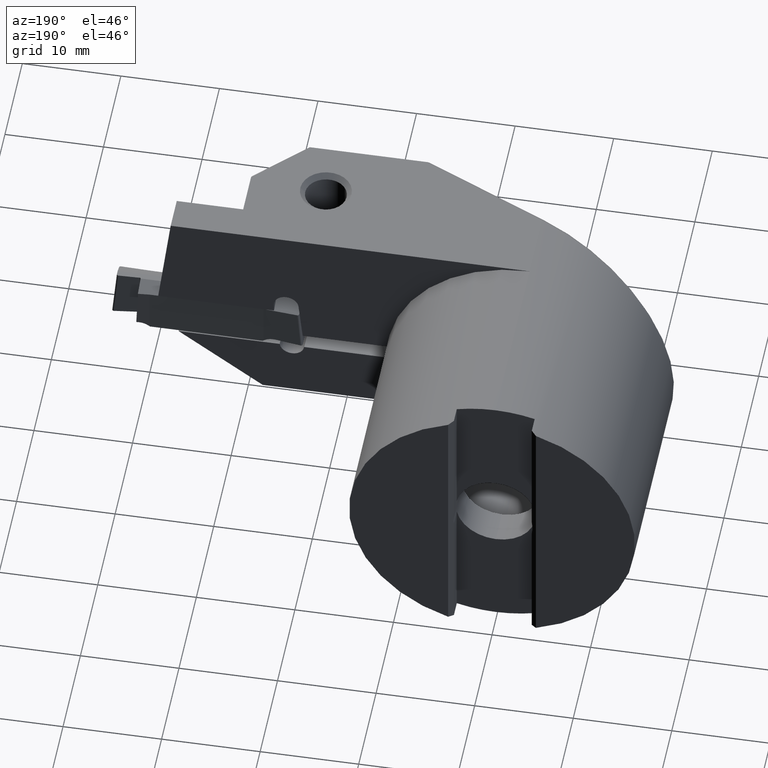
[diagram: clean part render]
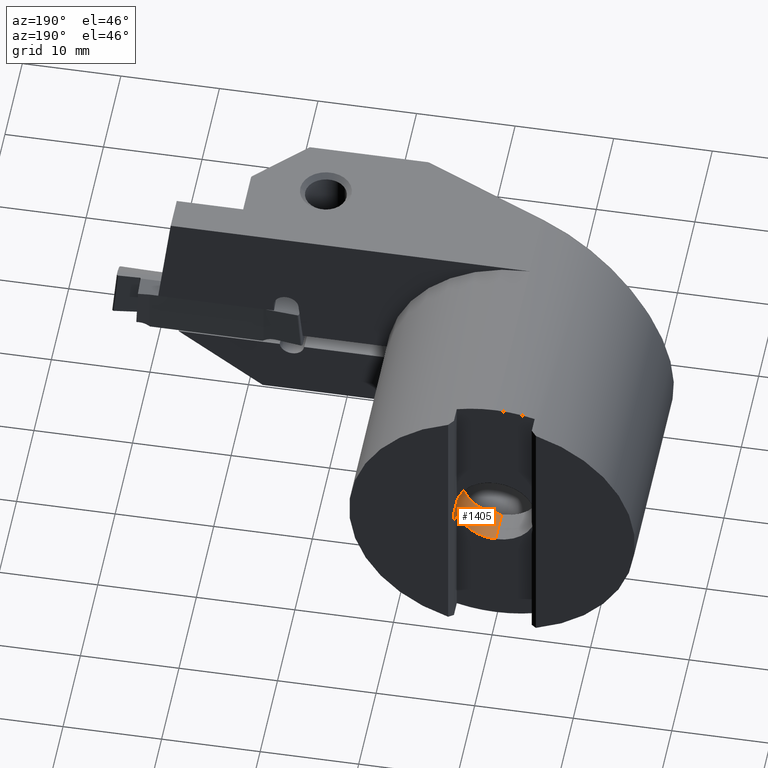
[diagram: same view with one face highlighted and labeled with its STEP entity id]
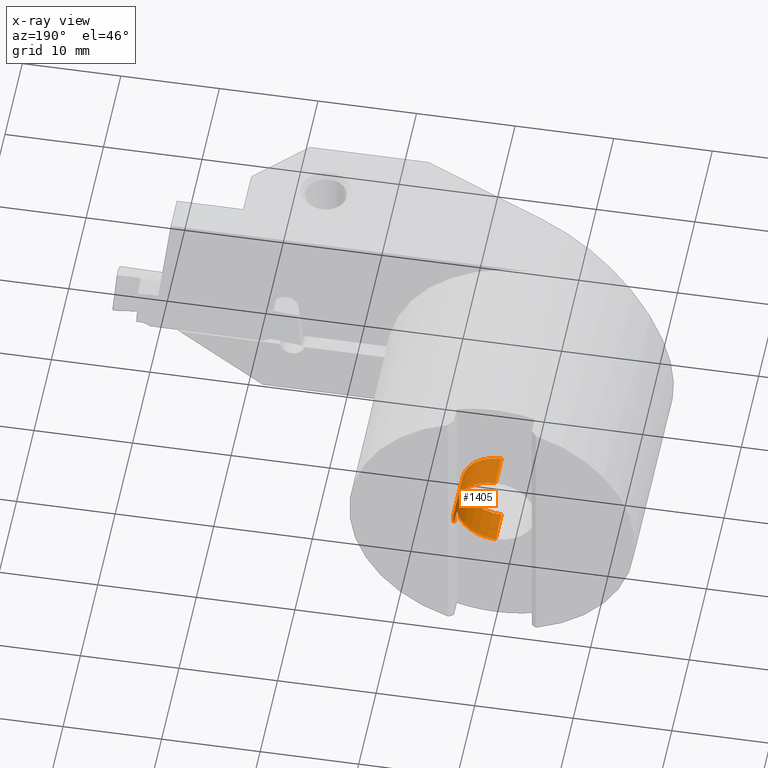
[diagram: x-ray of the same camera — body ghosted, the highlighted face saturated]
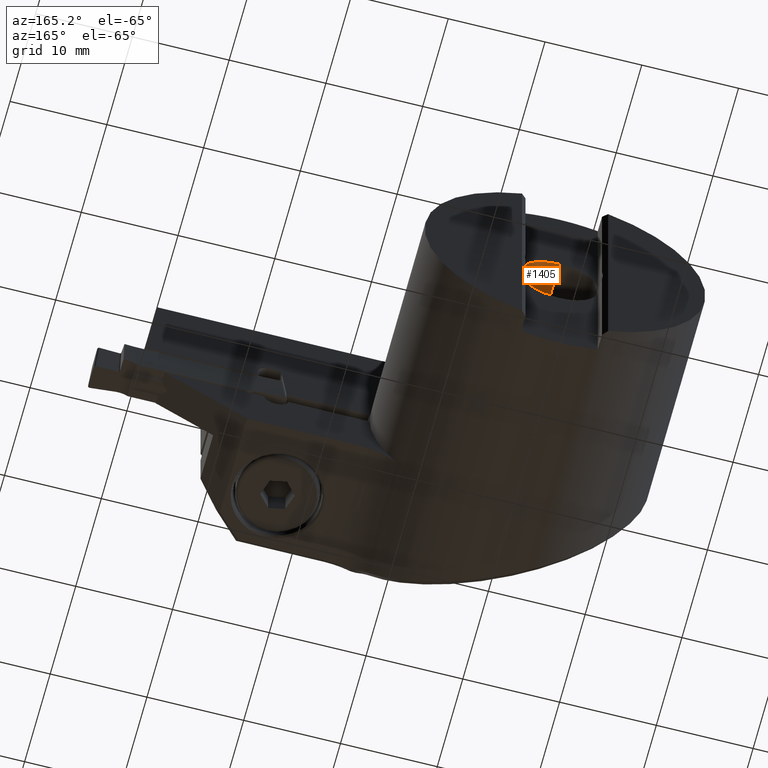
[diagram: same view with one face highlighted and labeled with its STEP entity id]
A machine part, auxiliary view. The second image highlights one B-rep face of the part: STEP entity #1405.
The next image is the same camera in x-ray: the body ghosted, the highlighted face saturated — about 0% of this face is hidden behind the body in this view.
A second angle (auxiliary view) of the same face is appended — the face is thin or edge-on in the first view.
In plain terms, the highlighted cylindrical surface (partial cylindrical patch) has radius 4.025 mm, axis along (-0, 1, -0).
Its self-contained STEP definition (entity closure, byte-faithful):
#997=EDGE_CURVE('NONE',#1859,#1421,#2555,.T.);
#1171=VERTEX_POINT('NONE',#2744);
#1323=VERTEX_POINT('NONE',#2908);
#1381=VERTEX_POINT('NONE',#2972);
#1405=ADVANCED_FACE('NONE',(#2998),#2999,.F.);
#1421=VERTEX_POINT('NONE',#3016);
#1591=EDGE_CURVE('NONE',#1171,#1381,#3204,.F.);
#1605=VERTEX_POINT('NONE',#3221);
#1669=EDGE_CURVE('NONE',#1859,#1605,#3290,.T.);
#1671=EDGE_CURVE('NONE',#1323,#2205,#3292,.F.);
#1673=VERTEX_POINT('NONE',#3294);
#1779=EDGE_CURVE('NONE',#1421,#1323,#3407,.T.);
#1859=VERTEX_POINT('NONE',#3500);
#1925=EDGE_CURVE('NONE',#1381,#1605,#3572,.F.);
#2203=EDGE_CURVE('NONE',#1171,#1673,#3882,.T.);
#2205=VERTEX_POINT('NONE',#3884);
#2297=EDGE_CURVE('NONE',#2205,#1673,#3983,.F.);
#2555=CIRCLE('',#4544,4.025);
#2744=CARTESIAN_POINT('',(3.95,-0.5,0.773385414912902));
#2908=CARTESIAN_POINT('',(4.92904057413507E-016,-2.15,-4.025));
#2972=CARTESIAN_POINT('',(3.95,-2.15,0.773385414912902));
#2998=FACE_OUTER_BOUND('',#5415,.T.);
#2999=CYLINDRICAL_SURFACE('',#5416,4.025);
#3016=CARTESIAN_POINT('',(0.0,-5.60000000000002,-4.025));
#3204=LINE('',#5793,#5794);
#3221=CARTESIAN_POINT('',(0.0,-2.15,4.025));
#3290=LINE('',#5959,#5960);
#3292=CIRCLE('',#5963,4.025);
#3294=CARTESIAN_POINT('',(3.95,-0.5,-0.773385414912902));
#3407=LINE('',#6135,#6136);
#3500=CARTESIAN_POINT('',(5.23519216259066E-016,-5.60000000000002,4.025));
#3572=CIRCLE('',#6437,4.025);
#3882=ELLIPSE('',#6956,5.6922095885517,4.025);
#3884=CARTESIAN_POINT('',(3.95,-2.15,-0.773385414912901));
#3983=LINE('',#7148,#7149);
#4544=AXIS2_PLACEMENT_3D('',#7440,#7441,#7442);
#5415=EDGE_LOOP('',(#7864,#7865,#7866,#7867,#7868,#7869,#7870,#7871));
#5416=AXIS2_PLACEMENT_3D('',#7872,#7873,#7874);
#5793=CARTESIAN_POINT('',(3.95,0.0,0.773385414912902));
#5794=VECTOR('',#8124,1.0);
#5959=CARTESIAN_POINT('',(0.0,0.0,4.025));
#5960=VECTOR('',#8218,1000.0);
#5963=AXIS2_PLACEMENT_3D('',#8219,#8220,#8221);
#6135=CARTESIAN_POINT('',(4.92904057413507E-016,0.0,-4.025));
#6136=VECTOR('',#8305,1000.0);
#6437=AXIS2_PLACEMENT_3D('',#8509,#8510,#8511);
#6956=AXIS2_PLACEMENT_3D('',#8856,#8857,#8858);
#7148=CARTESIAN_POINT('',(3.95,0.0,-0.773385414912902));
#7149=VECTOR('',#8947,1.0);
#7440=CARTESIAN_POINT('',(0.0,-5.60000000000002,0.0));
#7441=DIRECTION('',(0.0,1.0,0.0));
#7442=DIRECTION('',(0.0,0.0,1.0));
#7864=ORIENTED_EDGE('',*,*,#1779,.F.);
#7865=ORIENTED_EDGE('',*,*,#997,.F.);
#7866=ORIENTED_EDGE('',*,*,#1669,.T.);
#7867=ORIENTED_EDGE('',*,*,#1925,.F.);
#7868=ORIENTED_EDGE('',*,*,#1591,.F.);
#7869=ORIENTED_EDGE('',*,*,#2203,.T.);
#7870=ORIENTED_EDGE('',*,*,#2297,.F.);
#7871=ORIENTED_EDGE('',*,*,#1671,.F.);
#7872=CARTESIAN_POINT('',(0.0,0.0,0.0));
#7873=DIRECTION('',(-0.0,1.0,-0.0));
#7874=DIRECTION('',(0.0,0.0,1.0));
#8124=DIRECTION('',(0.0,1.0,0.0));
#8218=DIRECTION('',(0.0,1.0,0.0));
#8219=CARTESIAN_POINT('',(0.0,-2.15,0.0));
#8220=DIRECTION('',(-0.0,1.0,0.0));
#8221=DIRECTION('',(0.0,0.0,1.0));
#8305=DIRECTION('',(0.0,1.0,0.0));
#8509=CARTESIAN_POINT('',(0.0,-2.15,0.0));
#8510=DIRECTION('',(-0.0,1.0,0.0));
#8511=DIRECTION('',(0.0,0.0,1.0));
#8856=CARTESIAN_POINT('',(0.0,-4.44999999999999,0.0));
#8857=DIRECTION('',(-0.707106781186546,0.707106781186549,0.0));
#8858=DIRECTION('',(-0.707106781186549,-0.707106781186546,0.0));
#8947=DIRECTION('',(0.0,-1.0,0.0));